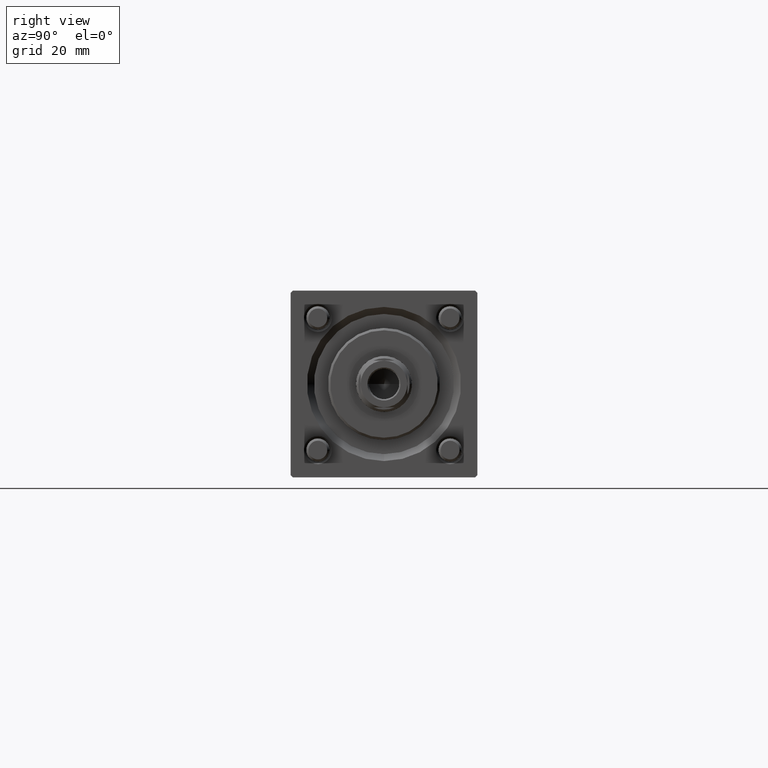
[diagram: clean part render]
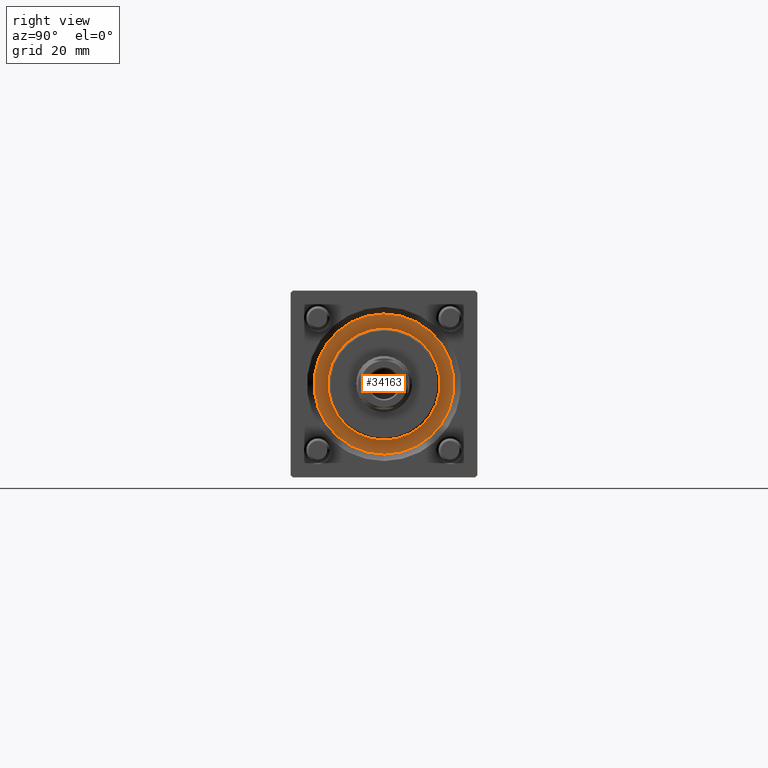
[diagram: same view with one face highlighted and labeled with its STEP entity id]
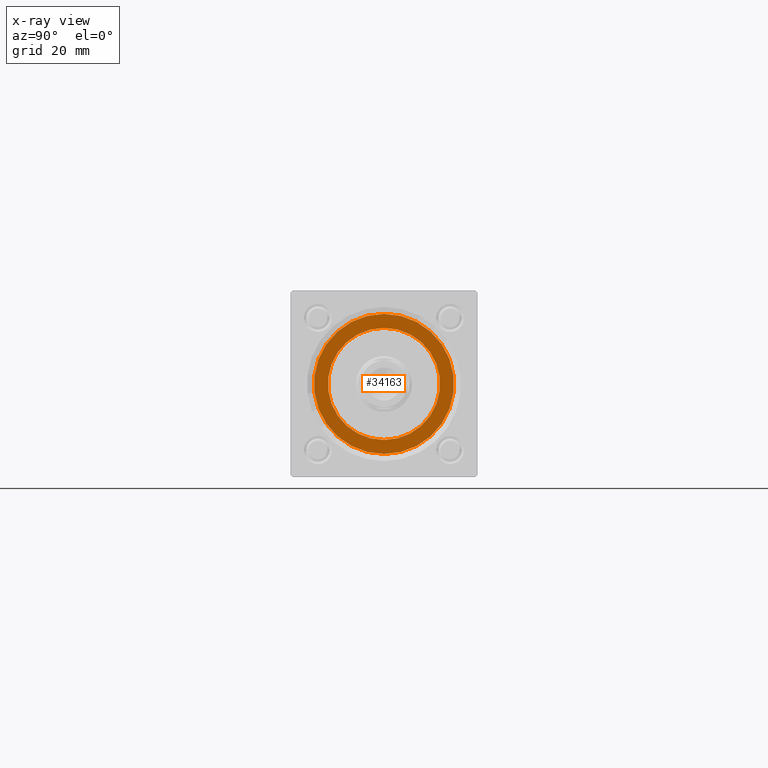
[diagram: x-ray of the same camera — body ghosted, the highlighted face saturated]
A machine part, right view. The second image highlights one B-rep face of the part: STEP entity #34163.
The next image is the same camera in x-ray: the body ghosted, the highlighted face saturated — about 0% of this face is hidden behind the body in this view.
In plain terms, the highlighted planar face has unit normal (1, 0, 0).
Its self-contained STEP definition (entity closure, byte-faithful):
#347 = CARTESIAN_POINT ( 'NONE',  ( 0.000000000000000000, 0.000000000000000000, 28.69999999999999929 ) ) ;
#739 = CARTESIAN_POINT ( 'NONE',  ( -15.00000000000000000, 0.000000000000000000, 28.69999999999999929 ) ) ;
#3499 = CARTESIAN_POINT ( 'NONE',  ( 0.000000000000000000, 0.000000000000000000, 28.69999999999999929 ) ) ;
#5928 = EDGE_CURVE ( 'NONE', #13394, #51031, #36490, .T. ) ;
#6222 = CARTESIAN_POINT ( 'NONE',  ( 0.000000000000000000, 0.000000000000000000, 28.69999999999999929 ) ) ;
#11551 = AXIS2_PLACEMENT_3D ( 'NONE', #3499, #11560, #46535 ) ;
#11560 = DIRECTION ( 'NONE',  ( 0.000000000000000000, 0.000000000000000000, 1.000000000000000000 ) ) ;
#13394 = VERTEX_POINT ( 'NONE', #45704 ) ;
#13975 = VERTEX_POINT ( 'NONE', #14298 ) ;
#14298 = CARTESIAN_POINT ( 'NONE',  ( 15.00000000000000000, 1.836970198721029589E-15, 28.69999999999999929 ) ) ;
#14568 = DIRECTION ( 'NONE',  ( 0.000000000000000000, 0.000000000000000000, 1.000000000000000000 ) ) ;
#17821 = AXIS2_PLACEMENT_3D ( 'NONE', #347, #44225, #56577 ) ;
#18133 = PLANE ( 'NONE',  #17821 ) ;
#18537 = ORIENTED_EDGE ( 'NONE', *, *, #39401, .F. ) ;
#20567 = EDGE_CURVE ( 'NONE', #38134, #13975, #32183, .T. ) ;
#21172 = DIRECTION ( 'NONE',  ( 0.000000000000000000, 0.000000000000000000, 1.000000000000000000 ) ) ;
#21270 = DIRECTION ( 'NONE',  ( 1.000000000000000000, 0.000000000000000000, 0.000000000000000000 ) ) ;
#22152 = FACE_OUTER_BOUND ( 'NONE', #30356, .T. ) ;
#27719 = CARTESIAN_POINT ( 'NONE',  ( -12.00000000000000178, 0.000000000000000000, 28.69999999999999929 ) ) ;
#28326 = EDGE_LOOP ( 'NONE', ( #18537, #39570 ) ) ;
#29790 = CARTESIAN_POINT ( 'NONE',  ( 0.000000000000000000, 0.000000000000000000, 28.69999999999999929 ) ) ;
#30356 = EDGE_LOOP ( 'NONE', ( #34161, #44185 ) ) ;
#32183 = CIRCLE ( 'NONE', #49599, 15.00000000000000000 ) ;
#32321 = DIRECTION ( 'NONE',  ( 1.000000000000000000, 0.000000000000000000, 0.000000000000000000 ) ) ;
#33764 = CIRCLE ( 'NONE', #41108, 15.00000000000000000 ) ;
#34161 = ORIENTED_EDGE ( 'NONE', *, *, #20567, .T. ) ;
#34163 = ADVANCED_FACE ( 'NONE', ( #39925, #22152 ), #18133, .T. ) ;
#35588 = AXIS2_PLACEMENT_3D ( 'NONE', #6222, #14568, #32321 ) ;
#36271 = CIRCLE ( 'NONE', #11551, 12.00000000000000178 ) ;
#36490 = CIRCLE ( 'NONE', #35588, 12.00000000000000178 ) ;
#38134 = VERTEX_POINT ( 'NONE', #739 ) ;
#39401 = EDGE_CURVE ( 'NONE', #51031, #13394, #36271, .T. ) ;
#39570 = ORIENTED_EDGE ( 'NONE', *, *, #5928, .F. ) ;
#39925 = FACE_BOUND ( 'NONE', #28326, .T. ) ;
#41108 = AXIS2_PLACEMENT_3D ( 'NONE', #47378, #52263, #21270 ) ;
#41993 = EDGE_CURVE ( 'NONE', #13975, #38134, #33764, .T. ) ;
#42968 = DIRECTION ( 'NONE',  ( 1.000000000000000000, 0.000000000000000000, 0.000000000000000000 ) ) ;
#44185 = ORIENTED_EDGE ( 'NONE', *, *, #41993, .T. ) ;
#44225 = DIRECTION ( 'NONE',  ( 0.000000000000000000, 0.000000000000000000, 1.000000000000000000 ) ) ;
#45704 = CARTESIAN_POINT ( 'NONE',  ( 12.00000000000000178, 1.469576158976824144E-15, 28.69999999999999929 ) ) ;
#46535 = DIRECTION ( 'NONE',  ( 1.000000000000000000, 0.000000000000000000, 0.000000000000000000 ) ) ;
#47378 = CARTESIAN_POINT ( 'NONE',  ( 0.000000000000000000, 0.000000000000000000, 28.69999999999999929 ) ) ;
#49599 = AXIS2_PLACEMENT_3D ( 'NONE', #29790, #21172, #42968 ) ;
#51031 = VERTEX_POINT ( 'NONE', #27719 ) ;
#52263 = DIRECTION ( 'NONE',  ( 0.000000000000000000, 0.000000000000000000, 1.000000000000000000 ) ) ;
#56577 = DIRECTION ( 'NONE',  ( 1.000000000000000000, 0.000000000000000000, -0.000000000000000000 ) ) ;